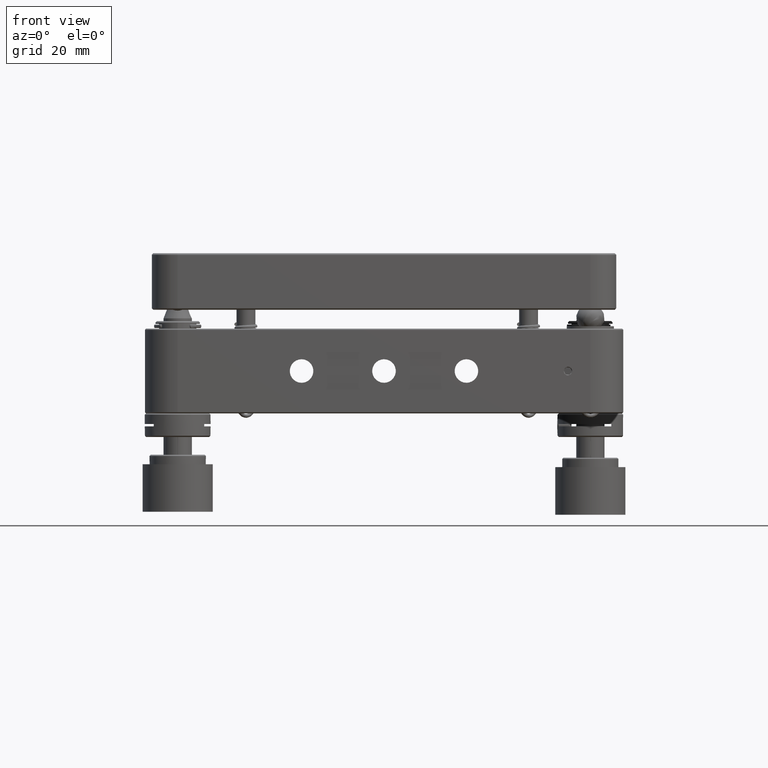
[diagram: clean part render]
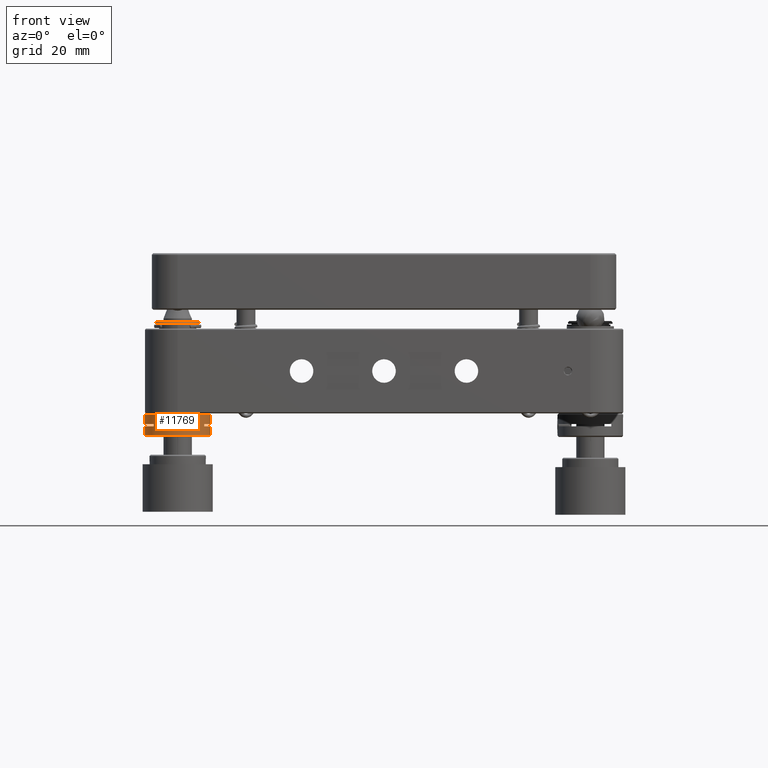
[diagram: same view with one face highlighted and labeled with its STEP entity id]
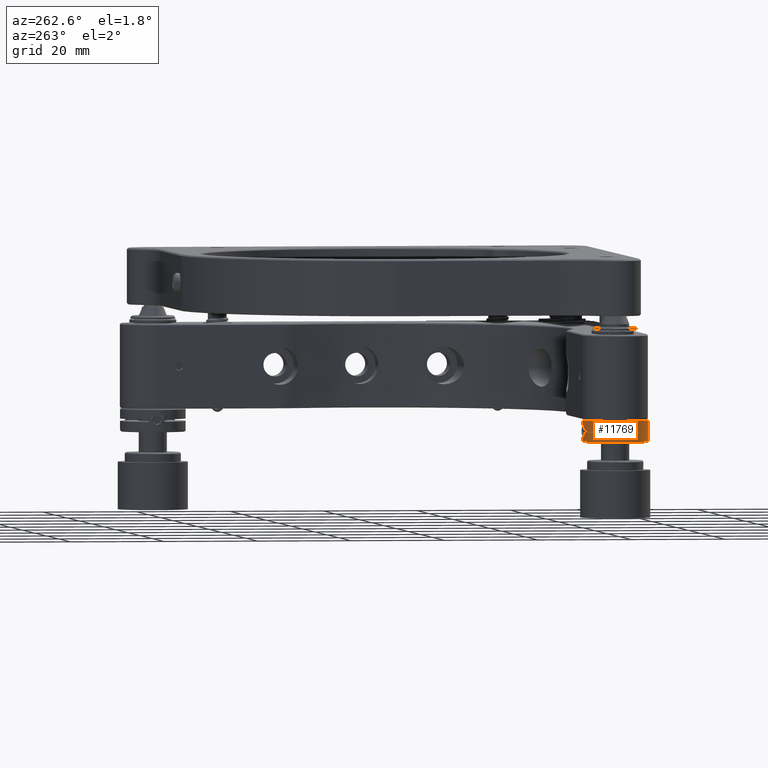
[diagram: same view with one face highlighted and labeled with its STEP entity id]
A machine part, front view. The second image highlights one B-rep face of the part: STEP entity #11769.
A second angle (auxiliary view) of the same face is appended — the face is thin or edge-on in the first view.
In plain terms, the highlighted cylindrical surface (bore or boss wall) has radius 7 mm, axis along (-0, 0, -1).
Its self-contained STEP definition (entity closure, byte-faithful):
#301 = CARTESIAN_POINT ( 'NONE',  ( -44.51183374017397654, -36.83496604775125149, -12.72569855541393125 ) ) ;
#413 = CIRCLE ( 'NONE', #13658, 6.999999999999999112 ) ;
#578 = CARTESIAN_POINT ( 'NONE',  ( -44.08454042969610498, -36.80430606891457046, -10.25002233440149269 ) ) ;
#585 = DIRECTION ( 'NONE',  ( 0.000000000000000000, 1.000000000000000000, 0.000000000000000000 ) ) ;
#648 = FACE_OUTER_BOUND ( 'NONE', #17812, .T. ) ;
#912 = FACE_OUTER_BOUND ( 'NONE', #3938, .T. ) ;
#998 = AXIS2_PLACEMENT_3D ( 'NONE', #3548, #20356, #2057 ) ;
#1608 = CARTESIAN_POINT ( 'NONE',  ( -48.87650113861170809, -48.61966141857231349, -11.25000000000014566 ) ) ;
#2052 = CARTESIAN_POINT ( 'NONE',  ( -43.32406135552793103, -36.81530480904935843, -12.37674119353077096 ) ) ;
#2057 = DIRECTION ( 'NONE',  ( 0.000000000000000000, 1.000000000000000000, 0.000000000000000000 ) ) ;
#2090 = VERTEX_POINT ( 'NONE', #14390 ) ;
#2420 = AXIS2_PLACEMENT_3D ( 'NONE', #11530, #25809, #13676 ) ;
#2513 = CARTESIAN_POINT ( 'NONE',  ( -43.79999999999999005, -43.80000000000004690, 10.59999999999985398 ) ) ;
#3388 = VERTEX_POINT ( 'NONE', #4397 ) ;
#3450 = DIRECTION ( 'NONE',  ( -7.425085104004341838E-18, 1.211177615769976045E-16, -1.000000000000000000 ) ) ;
#3548 = CARTESIAN_POINT ( 'NONE',  ( -43.79999999999999005, -43.80000000000004690, -11.75000000000014388 ) ) ;
#3572 = CIRCLE ( 'NONE', #12935, 6.999999999999999112 ) ;
#3938 = EDGE_LOOP ( 'NONE', ( #11869 ) ) ;
#4053 = EDGE_LOOP ( 'NONE', ( #11366, #18233, #22564, #6082, #6104, #15198, #23605, #23097 ) ) ;
#4158 = CARTESIAN_POINT ( 'NONE',  ( -48.87650113861170809, -48.61966141857230639, -11.25000000000014566 ) ) ;
#4309 = CARTESIAN_POINT ( 'NONE',  ( -44.90447294814708812, -36.88677635811717437, -12.55902774494393448 ) ) ;
#4397 = CARTESIAN_POINT ( 'NONE',  ( -38.17279066212778105, -47.96347391822793327, -11.25000000000014566 ) ) ;
#4444 = CARTESIAN_POINT ( 'NONE',  ( -42.99927171118096680, -36.84594836030934317, -11.75000000000014211 ) ) ;
#4574 = CARTESIAN_POINT ( 'NONE',  ( -43.02838102700647482, -36.84259655134138001, -11.10866604492857412 ) ) ;
#5098 = CARTESIAN_POINT ( 'NONE',  ( -43.79999999999999005, -43.80000000000004690, -11.75000000000014388 ) ) ;
#5470 = DIRECTION ( 'NONE',  ( 2.391543916884339019E-17, -1.201068257676468558E-16, 1.000000000000000000 ) ) ;
#5585 = LINE ( 'NONE', #13735, #17894 ) ;
#5801 = EDGE_CURVE ( 'NONE', #8582, #2090, #13776, .T. ) ;
#6082 = ORIENTED_EDGE ( 'NONE', *, *, #10818, .T. ) ;
#6104 = ORIENTED_EDGE ( 'NONE', *, *, #6540, .F. ) ;
#6518 = VERTEX_POINT ( 'NONE', #24668 ) ;
#6540 = EDGE_CURVE ( 'NONE', #16165, #14929, #13259, .T. ) ;
#6593 = CARTESIAN_POINT ( 'NONE',  ( -44.51260797959585602, -36.83505172733048738, -10.27452152175080613 ) ) ;
#6971 = CARTESIAN_POINT ( 'NONE',  ( -44.78128224057417128, -36.86779979098415083, -10.37094925427549086 ) ) ;
#7091 = DIRECTION ( 'NONE',  ( -2.391543916884339019E-17, 1.201068257676468558E-16, -1.000000000000000000 ) ) ;
#7101 = CARTESIAN_POINT ( 'NONE',  ( -42.99927171118096680, -36.84594836030934317, -11.25000000000014566 ) ) ;
#7566 = CARTESIAN_POINT ( 'NONE',  ( -43.54722658241570343, -36.80367309917885166, -12.55835818216467992 ) ) ;
#8320 = CARTESIAN_POINT ( 'NONE',  ( -45.12487783185263623, -36.92561127469928550, -12.37746518123562467 ) ) ;
#8582 = VERTEX_POINT ( 'NONE', #19826 ) ;
#8585 = CARTESIAN_POINT ( 'NONE',  ( -43.23056353286599318, -36.82279398208649468, -10.73024346371967042 ) ) ;
#8881 = VERTEX_POINT ( 'NONE', #26341 ) ;
#8973 = CIRCLE ( 'NONE', #23907, 7.000000000001146638 ) ;
#9071 = DIRECTION ( 'NONE',  ( -0.9981261485332977301, -0.06118979991865618889, 0.000000000000000000 ) ) ;
#9120 = CARTESIAN_POINT ( 'NONE',  ( -43.79999999999999005, -43.80000000000004690, -11.25000000000014388 ) ) ;
#9710 = CARTESIAN_POINT ( 'NONE',  ( -45.41567361273155967, -36.98894587262714850, -11.89141311053412409 ) ) ;
#10201 = CARTESIAN_POINT ( 'NONE',  ( -43.67192371624448555, -36.79985402342055067, -12.62867090855117524 ) ) ;
#10329 = CARTESIAN_POINT ( 'NONE',  ( -44.78117422493218669, -36.86777796302249754, -12.62914712264652017 ) ) ;
#10486 = EDGE_CURVE ( 'NONE', #3388, #8582, #24998, .T. ) ;
#10818 = EDGE_CURVE ( 'NONE', #2090, #14929, #18201, .T. ) ;
#10987 = CARTESIAN_POINT ( 'NONE',  ( -43.08071384762926925, -36.83664670309495648, -10.97620458528213838 ) ) ;
#11366 = ORIENTED_EDGE ( 'NONE', *, *, #13852, .F. ) ;
#11530 = CARTESIAN_POINT ( 'NONE',  ( -43.79999999999999005, -43.80000000000004690, -11.25000000000014744 ) ) ;
#11548 = CARTESIAN_POINT ( 'NONE',  ( -38.17279066212778105, -47.96347391822793327, -11.75000000000014566 ) ) ;
#11619 = VERTEX_POINT ( 'NONE', #23628 ) ;
#11769 = ADVANCED_FACE ( 'NONE', ( #912, #648, #20824 ), #16928, .T. ) ;
#11819 = CARTESIAN_POINT ( 'NONE',  ( -43.79999999999999005, -43.80000000000004690, -13.75000000000014211 ) ) ;
#11869 = ORIENTED_EDGE ( 'NONE', *, *, #20604, .F. ) ;
#12054 = DIRECTION ( 'NONE',  ( 7.425085104004341838E-18, -1.211177615769976045E-16, 1.000000000000000000 ) ) ;
#12508 = CIRCLE ( 'NONE', #998, 6.999999999999999112 ) ;
#12852 = CARTESIAN_POINT ( 'NONE',  ( -43.94352818696781071, -36.80015810450514380, -10.27448040792035755 ) ) ;
#12935 = AXIS2_PLACEMENT_3D ( 'NONE', #11819, #19837, #24105 ) ;
#13245 = DIRECTION ( 'NONE',  ( 0.000000000000000000, 1.000000000000000000, 0.000000000000000000 ) ) ;
#13258 = CARTESIAN_POINT ( 'NONE',  ( -43.54778398638656967, -36.80365177778149643, -10.44127978799764556 ) ) ;
#13259 = LINE ( 'NONE', #4158, #21968 ) ;
#13658 = AXIS2_PLACEMENT_3D ( 'NONE', #5098, #7091, #13245 ) ;
#13676 = DIRECTION ( 'NONE',  ( 0.000000000000000000, 1.000000000000000000, 0.000000000000000000 ) ) ;
#13735 = CARTESIAN_POINT ( 'NONE',  ( -38.17279066212778105, -47.96347391822793327, -11.25000000000014566 ) ) ;
#13776 = B_SPLINE_CURVE_WITH_KNOTS ( 'NONE', 3,
 ( #7101, #4574, #10987, #8585, #16987, #13258, #25257, #12852, #578, #21012, #6593, #6971, #17254, #16863, #20880, #23402 ),
 .UNSPECIFIED., .F., .F.,
 ( 4, 2, 2, 2, 2, 2, 2, 4 ),
 ( 0.000000000000000000, 0.0004267903353813445205, 0.0008535806707626890409, 0.001280371006144033616, 0.001707161341525378082, 0.002133951676906722331, 0.002560742012288067231, 0.003414322683050743153 ),
 .UNSPECIFIED. ) ;
#13852 = EDGE_CURVE ( 'NONE', #3388, #23745, #5585, .T. ) ;
#14390 = CARTESIAN_POINT ( 'NONE',  ( -45.44417147401767920, -36.99583214757117844, -11.24999999999976730 ) ) ;
#14592 = CARTESIAN_POINT ( 'NONE',  ( -43.02839884239205759, -36.84259449997853153, -11.89142045380354240 ) ) ;
#14929 = VERTEX_POINT ( 'NONE', #1608 ) ;
#15198 = ORIENTED_EDGE ( 'NONE', *, *, #20116, .T. ) ;
#16165 = VERTEX_POINT ( 'NONE', #23634 ) ;
#16584 = CARTESIAN_POINT ( 'NONE',  ( -45.44417147401706103, -36.99583214757102922, -11.75000000000014211 ) ) ;
#16863 = CARTESIAN_POINT ( 'NONE',  ( -45.23435450325333562, -36.94491108158523929, -10.71283861318749864 ) ) ;
#16928 = CYLINDRICAL_SURFACE ( 'NONE', #26342, 6.999999999999999112 ) ;
#16987 = CARTESIAN_POINT ( 'NONE',  ( -43.32446731697734776, -36.81527595166136280, -10.62283722177061485 ) ) ;
#17254 = CARTESIAN_POINT ( 'NONE',  ( -44.90530311120577522, -36.88691752816066582, -10.44159605555606163 ) ) ;
#17812 = EDGE_LOOP ( 'NONE', ( #19794 ) ) ;
#17894 = VECTOR ( 'NONE', #3450, 1000.000000000000000 ) ;
#18201 = CIRCLE ( 'NONE', #2420, 6.999999999999999112 ) ;
#18233 = ORIENTED_EDGE ( 'NONE', *, *, #10486, .T. ) ;
#18350 = CARTESIAN_POINT ( 'NONE',  ( -45.36441421802484086, -36.97663723491984200, -12.02395154946460920 ) ) ;
#18481 = CARTESIAN_POINT ( 'NONE',  ( -43.08055328105447757, -36.83666624597452710, -12.02334728188463231 ) ) ;
#18612 = CARTESIAN_POINT ( 'NONE',  ( -43.94356469477754246, -36.80015454411345388, -12.72555659215456458 ) ) ;
#19323 = CARTESIAN_POINT ( 'NONE',  ( -45.44417147401706103, -36.99583214757102922, -11.75000000000014211 ) ) ;
#19794 = ORIENTED_EDGE ( 'NONE', *, *, #23985, .T. ) ;
#19826 = CARTESIAN_POINT ( 'NONE',  ( -42.99927171118096680, -36.84594836030934317, -11.25000000000014566 ) ) ;
#19837 = DIRECTION ( 'NONE',  ( 2.391543916884339019E-17, -1.201068257676468558E-16, 1.000000000000000000 ) ) ;
#19860 = CARTESIAN_POINT ( 'NONE',  ( -44.37248550043156570, -36.82195445234346920, -12.75000000000012967 ) ) ;
#19993 = B_SPLINE_CURVE_WITH_KNOTS ( 'NONE', 3,
 ( #16584, #9710, #18350, #24598, #8320, #4309, #10329, #301, #19860, #20611, #18612, #10201, #7566, #2052, #22736, #18481, #14592, #4444 ),
 .UNSPECIFIED., .F., .F.,
 ( 4, 2, 2, 2, 2, 2, 2, 2, 4 ),
 ( -0.001708271253924131209, -0.001281203595982935385, -0.0008541359380417395605, -0.0004270682801005437363, -6.221593479120712811E-10, 0.0004270670357818481290, 0.0008541346937230437364, 0.001281202351664239344, 0.001708270009605435385 ),
 .UNSPECIFIED. ) ;
#20116 = EDGE_CURVE ( 'NONE', #16165, #26268, #413, .T. ) ;
#20356 = DIRECTION ( 'NONE',  ( -2.391543916884339019E-17, 1.201068257676468558E-16, -1.000000000000000000 ) ) ;
#20604 = EDGE_CURVE ( 'NONE', #11619, #11619, #8973, .T. ) ;
#20611 = CARTESIAN_POINT ( 'NONE',  ( -44.08417169841807493, -36.80427946818974050, -12.75000000000012967 ) ) ;
#20824 = FACE_BOUND ( 'NONE', #4053, .T. ) ;
#20880 = CARTESIAN_POINT ( 'NONE',  ( -45.38720811987647608, -36.98206741924957441, -10.96733439872003402 ) ) ;
#21012 = CARTESIAN_POINT ( 'NONE',  ( -44.37172964028912503, -36.82190412419177505, -10.24997769568515515 ) ) ;
#21021 = DIRECTION ( 'NONE',  ( 2.391543916884339019E-17, -1.201068257676468558E-16, 1.000000000000000000 ) ) ;
#21534 = EDGE_CURVE ( 'NONE', #26268, #8881, #19993, .T. ) ;
#21968 = VECTOR ( 'NONE', #12054, 1000.000000000000000 ) ;
#22465 = AXIS2_PLACEMENT_3D ( 'NONE', #9120, #21021, #585 ) ;
#22564 = ORIENTED_EDGE ( 'NONE', *, *, #5801, .T. ) ;
#22736 = CARTESIAN_POINT ( 'NONE',  ( -43.22985648212390686, -36.82285467254867939, -12.26877950558223951 ) ) ;
#23097 = ORIENTED_EDGE ( 'NONE', *, *, #23856, .T. ) ;
#23402 = CARTESIAN_POINT ( 'NONE',  ( -45.44417147401767920, -36.99583214757117844, -11.24999999999976730 ) ) ;
#23605 = ORIENTED_EDGE ( 'NONE', *, *, #21534, .T. ) ;
#23628 = CARTESIAN_POINT ( 'NONE',  ( -50.78688303973422080, -44.22832859943071071, -9.250000000008640200 ) ) ;
#23634 = CARTESIAN_POINT ( 'NONE',  ( -48.87650113861170809, -48.61966141857231349, -11.75000000000014566 ) ) ;
#23745 = VERTEX_POINT ( 'NONE', #11548 ) ;
#23756 = CARTESIAN_POINT ( 'NONE',  ( -43.79999999999999005, -43.80000000000004690, -9.250000000008640200 ) ) ;
#23856 = EDGE_CURVE ( 'NONE', #8881, #23745, #12508, .T. ) ;
#23907 = AXIS2_PLACEMENT_3D ( 'NONE', #23756, #5470, #9071 ) ;
#23985 = EDGE_CURVE ( 'NONE', #6518, #6518, #3572, .T. ) ;
#24105 = DIRECTION ( 'NONE',  ( 0.000000000000000000, 1.000000000000000000, 0.000000000000000000 ) ) ;
#24598 = CARTESIAN_POINT ( 'NONE',  ( -45.21725407590989931, -36.94455966740594732, -12.27001362942793783 ) ) ;
#24668 = CARTESIAN_POINT ( 'NONE',  ( -43.79999999999999005, -36.80000000000004690, -13.75000000000014211 ) ) ;
#24806 = DIRECTION ( 'NONE',  ( 0.000000000000000000, 1.000000000000000000, 0.000000000000000000 ) ) ;
#24998 = CIRCLE ( 'NONE', #22465, 6.999999999999999112 ) ;
#25071 = DIRECTION ( 'NONE',  ( -2.391543916884339019E-17, 1.201068257676468558E-16, -1.000000000000000000 ) ) ;
#25257 = CARTESIAN_POINT ( 'NONE',  ( -43.67233173578988215, -36.79985087896744744, -10.37115961780037310 ) ) ;
#25809 = DIRECTION ( 'NONE',  ( 2.391543916884339019E-17, -1.201068257676468558E-16, 1.000000000000000000 ) ) ;
#26268 = VERTEX_POINT ( 'NONE', #19323 ) ;
#26341 = CARTESIAN_POINT ( 'NONE',  ( -42.99927171118096680, -36.84594836030934317, -11.75000000000014211 ) ) ;
#26342 = AXIS2_PLACEMENT_3D ( 'NONE', #2513, #25071, #24806 ) ;